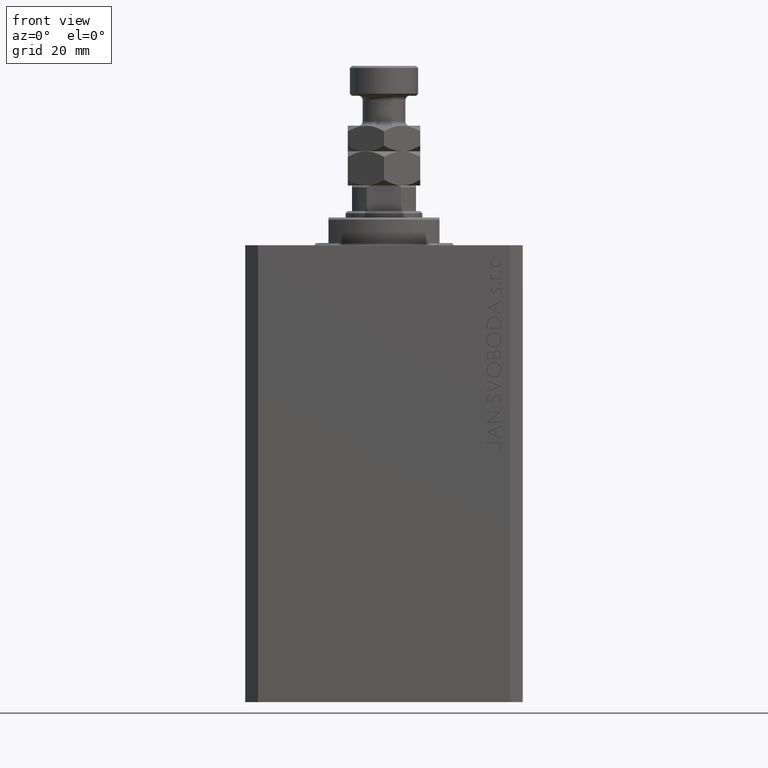
[diagram: clean part render]
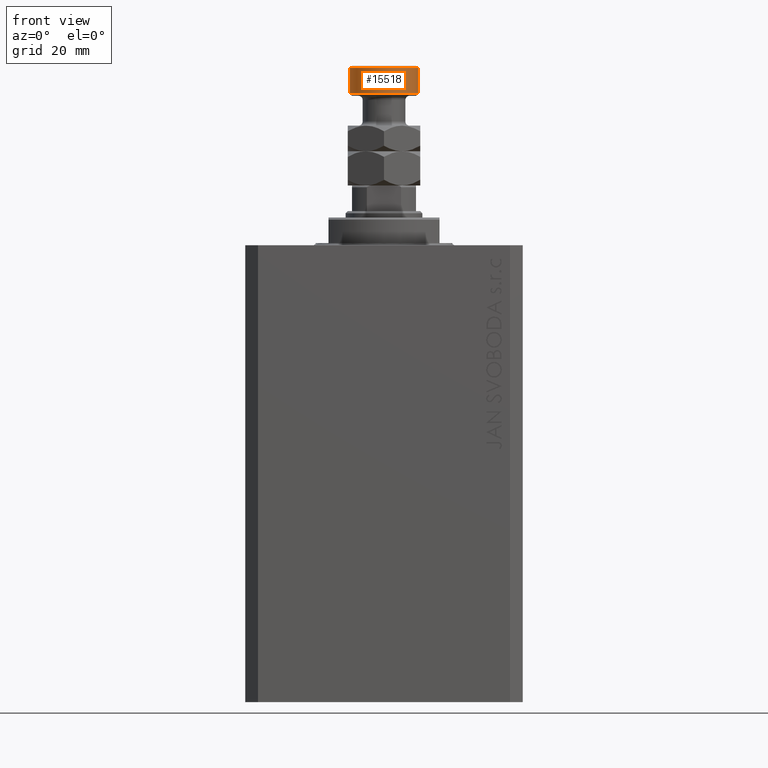
[diagram: same view with one face highlighted and labeled with its STEP entity id]
A machine part, front view. The second image highlights one B-rep face of the part: STEP entity #15518.
In plain terms, the highlighted cylindrical surface (edge-blend (fillet) strip) has radius 8 mm, axis along (-0, -0, -1).
Its self-contained STEP definition (entity closure, byte-faithful):
#1143 = VERTEX_POINT ( 'NONE', #25768 ) ;
#3791 = LINE ( 'NONE', #18921, #16692 ) ;
#4217 = EDGE_LOOP ( 'NONE', ( #43199, #30305, #47098, #20147 ) ) ;
#4511 = DIRECTION ( 'NONE',  ( -0.000000000000000000, -0.000000000000000000, -1.000000000000000000 ) ) ;
#5687 = AXIS2_PLACEMENT_3D ( 'NONE', #35533, #9066, #13776 ) ;
#9066 = DIRECTION ( 'NONE',  ( -0.000000000000000000, -0.000000000000000000, -1.000000000000000000 ) ) ;
#9969 = CARTESIAN_POINT ( 'NONE',  ( -8.000000000000000000, 0.000000000000000000, 21.50000000000000711 ) ) ;
#10445 = CIRCLE ( 'NONE', #12025, 8.000000000000000000 ) ;
#11239 = VERTEX_POINT ( 'NONE', #9969 ) ;
#12025 = AXIS2_PLACEMENT_3D ( 'NONE', #34228, #19398, #37947 ) ;
#13776 = DIRECTION ( 'NONE',  ( -1.000000000000000000, 0.000000000000000000, 0.000000000000000000 ) ) ;
#15518 = ADVANCED_FACE ( 'NONE', ( #35288 ), #36031, .T. ) ;
#15976 = CARTESIAN_POINT ( 'NONE',  ( 8.000000000000000000, 9.797174393178825657E-16, 21.50000000000000711 ) ) ;
#16058 = EDGE_CURVE ( 'NONE', #11239, #18466, #10445, .T. ) ;
#16520 = VERTEX_POINT ( 'NONE', #28693 ) ;
#16692 = VECTOR ( 'NONE', #4511, 1000.000000000000000 ) ;
#18466 = VERTEX_POINT ( 'NONE', #15976 ) ;
#18921 = CARTESIAN_POINT ( 'NONE',  ( 8.000000000000000000, 9.797174393178825657E-16, 28.00000000000000000 ) ) ;
#19398 = DIRECTION ( 'NONE',  ( -0.000000000000000000, -0.000000000000000000, 1.000000000000000000 ) ) ;
#20147 = ORIENTED_EDGE ( 'NONE', *, *, #16058, .T. ) ;
#21123 = CARTESIAN_POINT ( 'NONE',  ( -8.000000000000000000, 0.000000000000000000, 28.00000000000000000 ) ) ;
#24223 = EDGE_CURVE ( 'NONE', #1143, #16520, #47488, .T. ) ;
#25210 = VECTOR ( 'NONE', #36204, 1000.000000000000000 ) ;
#25768 = CARTESIAN_POINT ( 'NONE',  ( 8.000000000000000000, 9.797174393178825657E-16, 27.50000000000000000 ) ) ;
#28123 = DIRECTION ( 'NONE',  ( 1.000000000000000000, 0.000000000000000000, 0.000000000000000000 ) ) ;
#28693 = CARTESIAN_POINT ( 'NONE',  ( -8.000000000000000000, 0.000000000000000000, 27.50000000000000000 ) ) ;
#30305 = ORIENTED_EDGE ( 'NONE', *, *, #24223, .T. ) ;
#34228 = CARTESIAN_POINT ( 'NONE',  ( 0.000000000000000000, 0.000000000000000000, 21.50000000000000711 ) ) ;
#34949 = EDGE_CURVE ( 'NONE', #16520, #11239, #44375, .T. ) ;
#35288 = FACE_OUTER_BOUND ( 'NONE', #4217, .T. ) ;
#35533 = CARTESIAN_POINT ( 'NONE',  ( 0.000000000000000000, 0.000000000000000000, 28.00000000000000000 ) ) ;
#36031 = CYLINDRICAL_SURFACE ( 'NONE', #5687, 8.000000000000000000 ) ;
#36204 = DIRECTION ( 'NONE',  ( -0.000000000000000000, -0.000000000000000000, -1.000000000000000000 ) ) ;
#37947 = DIRECTION ( 'NONE',  ( 1.000000000000000000, 0.000000000000000000, 0.000000000000000000 ) ) ;
#39752 = CARTESIAN_POINT ( 'NONE',  ( 0.000000000000000000, 0.000000000000000000, 27.50000000000000000 ) ) ;
#42719 = DIRECTION ( 'NONE',  ( 0.000000000000000000, 0.000000000000000000, -1.000000000000000000 ) ) ;
#43199 = ORIENTED_EDGE ( 'NONE', *, *, #44751, .F. ) ;
#44375 = LINE ( 'NONE', #21123, #25210 ) ;
#44751 = EDGE_CURVE ( 'NONE', #1143, #18466, #3791, .T. ) ;
#45908 = AXIS2_PLACEMENT_3D ( 'NONE', #39752, #42719, #28123 ) ;
#47098 = ORIENTED_EDGE ( 'NONE', *, *, #34949, .T. ) ;
#47488 = CIRCLE ( 'NONE', #45908, 8.000000000000000000 ) ;